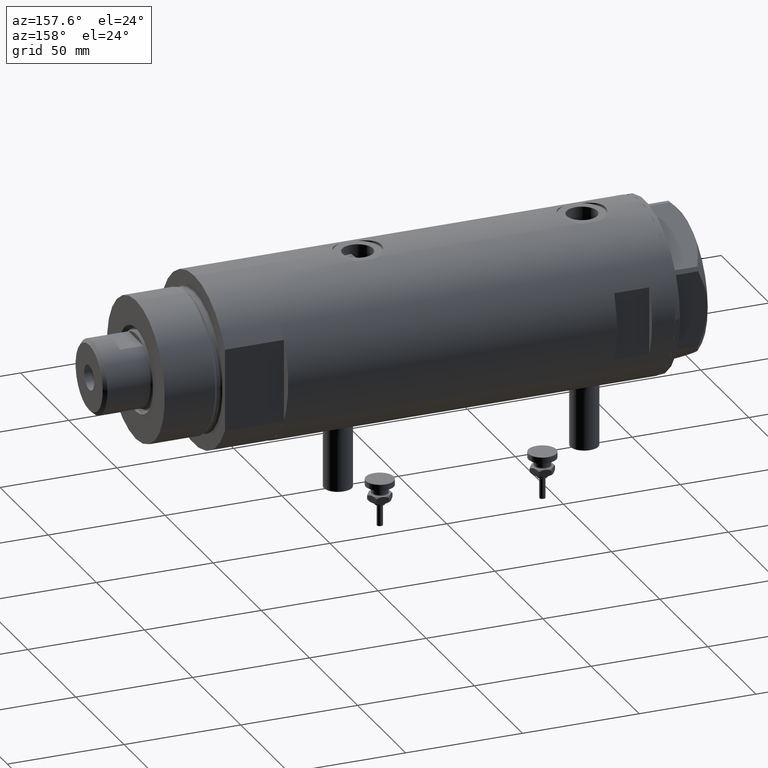
[diagram: clean part render]
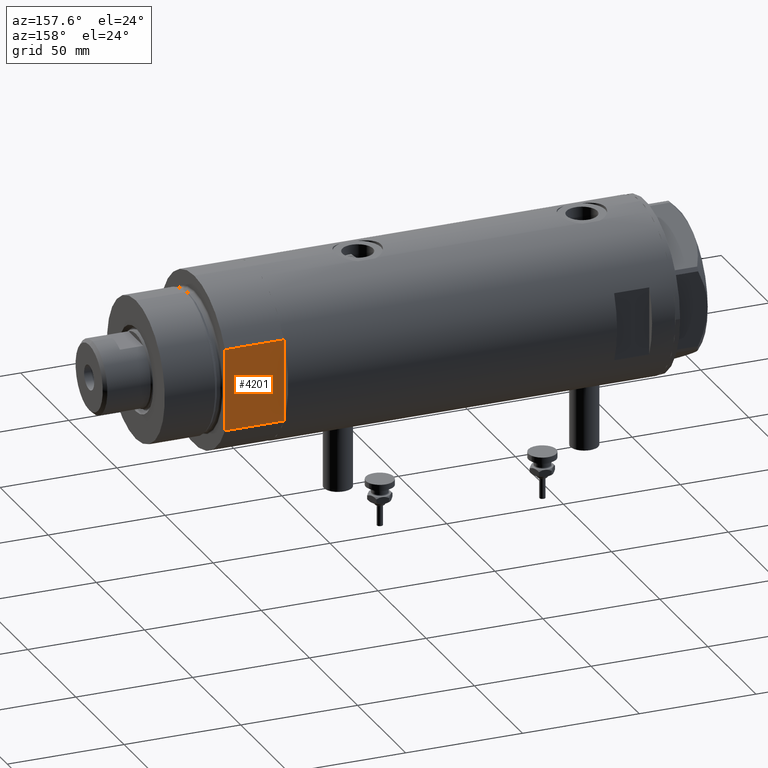
[diagram: same view with one face highlighted and labeled with its STEP entity id]
A machine part, auxiliary view. The second image highlights one B-rep face of the part: STEP entity #4201.
In plain terms, the highlighted planar face has unit normal (0, -1, -0).
Its self-contained STEP definition (entity closure, byte-faithful):
#33 = CARTESIAN_POINT ( 'NONE',  ( -17.55704986607943141, 32.00000000000000000, 0.000000000000000000 ) ) ;
#59 = VERTEX_POINT ( 'NONE', #3133 ) ;
#348 = CARTESIAN_POINT ( 'NONE',  ( -17.55704986607943496, 32.00000000000000000, 25.19999999999999929 ) ) ;
#563 = ORIENTED_EDGE ( 'NONE', *, *, #2607, .F. ) ;
#1151 = VECTOR ( 'NONE', #4255, 1000.000000000000000 ) ;
#1155 = VECTOR ( 'NONE', #2305, 1000.000000000000000 ) ;
#1191 = DIRECTION ( 'NONE',  ( 1.000000000000000000, 0.000000000000000000, 0.000000000000000000 ) ) ;
#1241 = VECTOR ( 'NONE', #5704, 1000.000000000000000 ) ;
#1460 = CARTESIAN_POINT ( 'NONE',  ( -17.55704986607943141, 32.00000000000000000, 0.000000000000000000 ) ) ;
#1781 = ORIENTED_EDGE ( 'NONE', *, *, #5190, .F. ) ;
#1992 = VERTEX_POINT ( 'NONE', #3522 ) ;
#2171 = EDGE_CURVE ( 'NONE', #59, #5744, #3741, .T. ) ;
#2270 = DIRECTION ( 'NONE',  ( 0.000000000000000000, -0.000000000000000000, -1.000000000000000000 ) ) ;
#2305 = DIRECTION ( 'NONE',  ( 1.000000000000000000, 0.000000000000000000, 0.000000000000000000 ) ) ;
#2307 = VECTOR ( 'NONE', #1191, 1000.000000000000000 ) ;
#2316 = EDGE_CURVE ( 'NONE', #4840, #2484, #3828, .T. ) ;
#2323 = EDGE_CURVE ( 'NONE', #59, #4840, #2524, .T. ) ;
#2341 = LINE ( 'NONE', #1460, #1155 ) ;
#2359 = ORIENTED_EDGE ( 'NONE', *, *, #2316, .T. ) ;
#2462 = CARTESIAN_POINT ( 'NONE',  ( -17.55704986607943141, 32.00000000000000000, 25.19999999999999929 ) ) ;
#2484 = VERTEX_POINT ( 'NONE', #5793 ) ;
#2524 = LINE ( 'NONE', #4308, #1241 ) ;
#2602 = FACE_OUTER_BOUND ( 'NONE', #2700, .T. ) ;
#2607 = EDGE_CURVE ( 'NONE', #5744, #1992, #2341, .T. ) ;
#2657 = CARTESIAN_POINT ( 'NONE',  ( 17.55704986607943141, 32.00000000000000000, 0.000000000000000000 ) ) ;
#2700 = EDGE_LOOP ( 'NONE', ( #2359, #1781, #563, #3240, #5440 ) ) ;
#3133 = CARTESIAN_POINT ( 'NONE',  ( -17.55704986607943141, 32.00000000000000000, 0.000000000000000000 ) ) ;
#3150 = LINE ( 'NONE', #2657, #5388 ) ;
#3240 = ORIENTED_EDGE ( 'NONE', *, *, #2171, .F. ) ;
#3522 = CARTESIAN_POINT ( 'NONE',  ( 17.55704986607943496, 32.00000000000000000, 0.000000000000000000 ) ) ;
#3741 = LINE ( 'NONE', #33, #1151 ) ;
#3828 = LINE ( 'NONE', #2462, #2307 ) ;
#4201 = ADVANCED_FACE ( 'NONE', ( #2602 ), #5395, .F. ) ;
#4255 = DIRECTION ( 'NONE',  ( 1.000000000000000000, 0.000000000000000000, 0.000000000000000000 ) ) ;
#4308 = CARTESIAN_POINT ( 'NONE',  ( -17.55704986607943141, 32.00000000000000000, 0.000000000000000000 ) ) ;
#4829 = AXIS2_PLACEMENT_3D ( 'NONE', #5452, #4900, #2270 ) ;
#4840 = VERTEX_POINT ( 'NONE', #348 ) ;
#4900 = DIRECTION ( 'NONE',  ( 0.000000000000000000, -1.000000000000000000, 0.000000000000000000 ) ) ;
#5190 = EDGE_CURVE ( 'NONE', #1992, #2484, #3150, .T. ) ;
#5388 = VECTOR ( 'NONE', #5842, 1000.000000000000000 ) ;
#5395 = PLANE ( 'NONE',  #4829 ) ;
#5440 = ORIENTED_EDGE ( 'NONE', *, *, #2323, .T. ) ;
#5452 = CARTESIAN_POINT ( 'NONE',  ( -17.55704986607943141, 32.00000000000000000, 0.000000000000000000 ) ) ;
#5704 = DIRECTION ( 'NONE',  ( -0.000000000000000000, -0.000000000000000000, 1.000000000000000000 ) ) ;
#5744 = VERTEX_POINT ( 'NONE', #5858 ) ;
#5793 = CARTESIAN_POINT ( 'NONE',  ( 17.55704986607943496, 32.00000000000000000, 25.19999999999999929 ) ) ;
#5842 = DIRECTION ( 'NONE',  ( -0.000000000000000000, -0.000000000000000000, 1.000000000000000000 ) ) ;
#5858 = CARTESIAN_POINT ( 'NONE',  ( 0.000000000000000000, 32.00000000000000000, 0.000000000000000000 ) ) ;